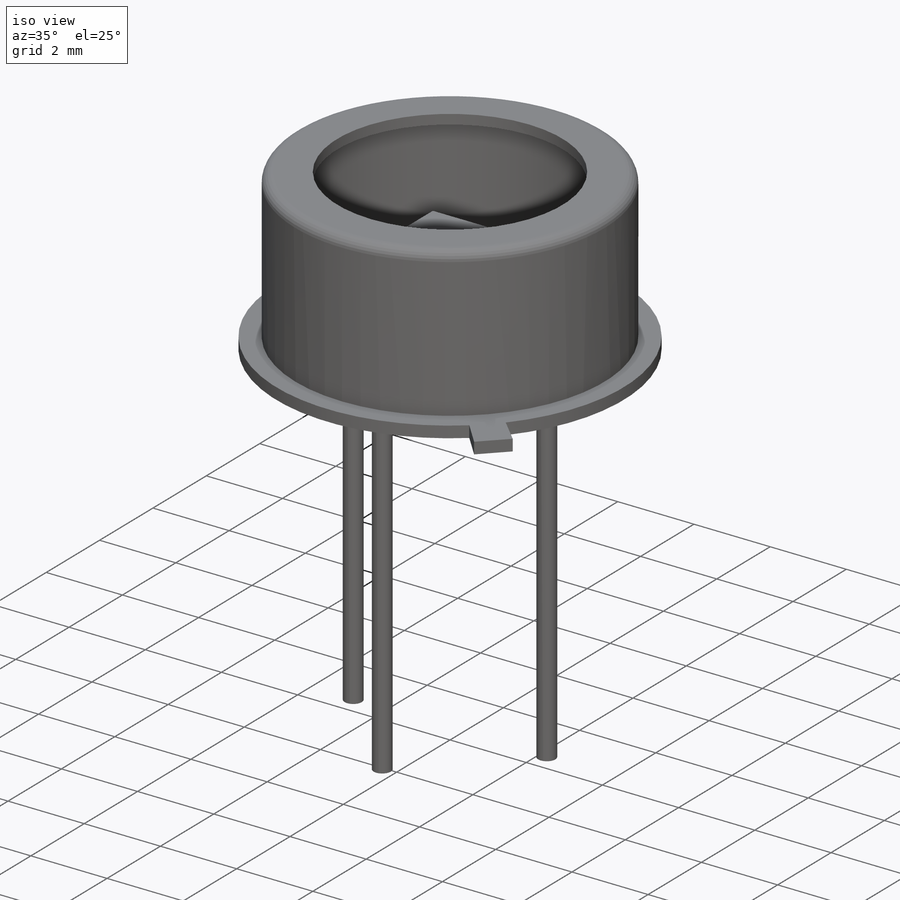
[diagram: iso view]
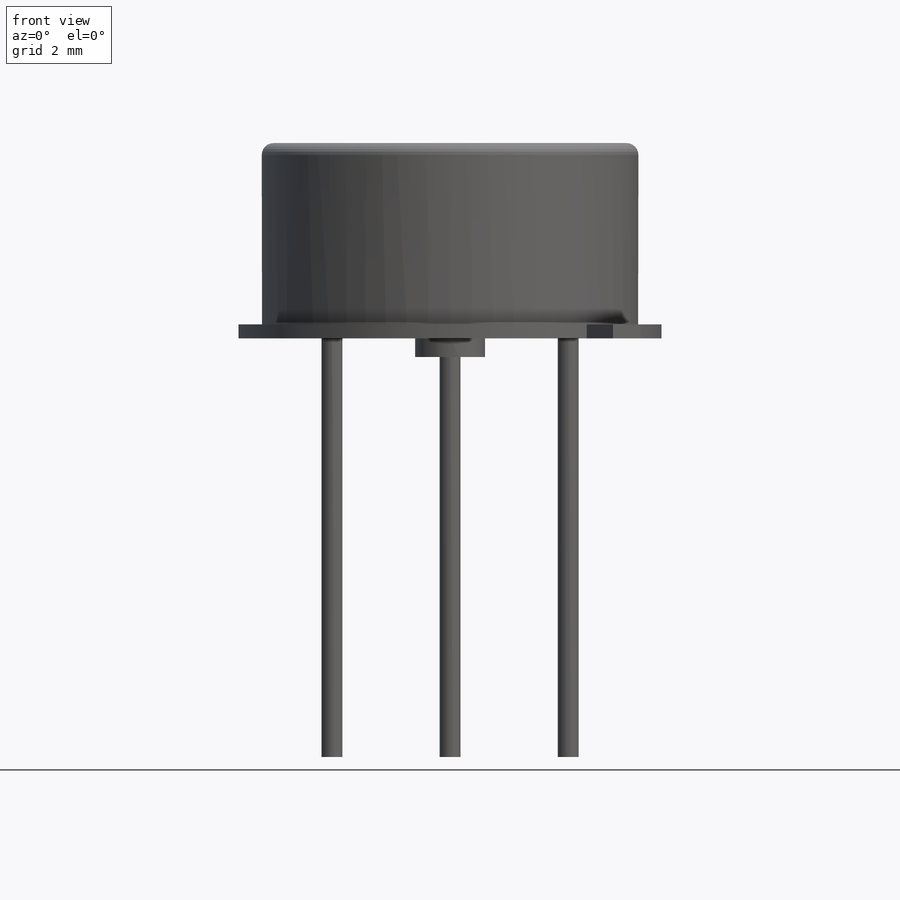
[diagram: front view]
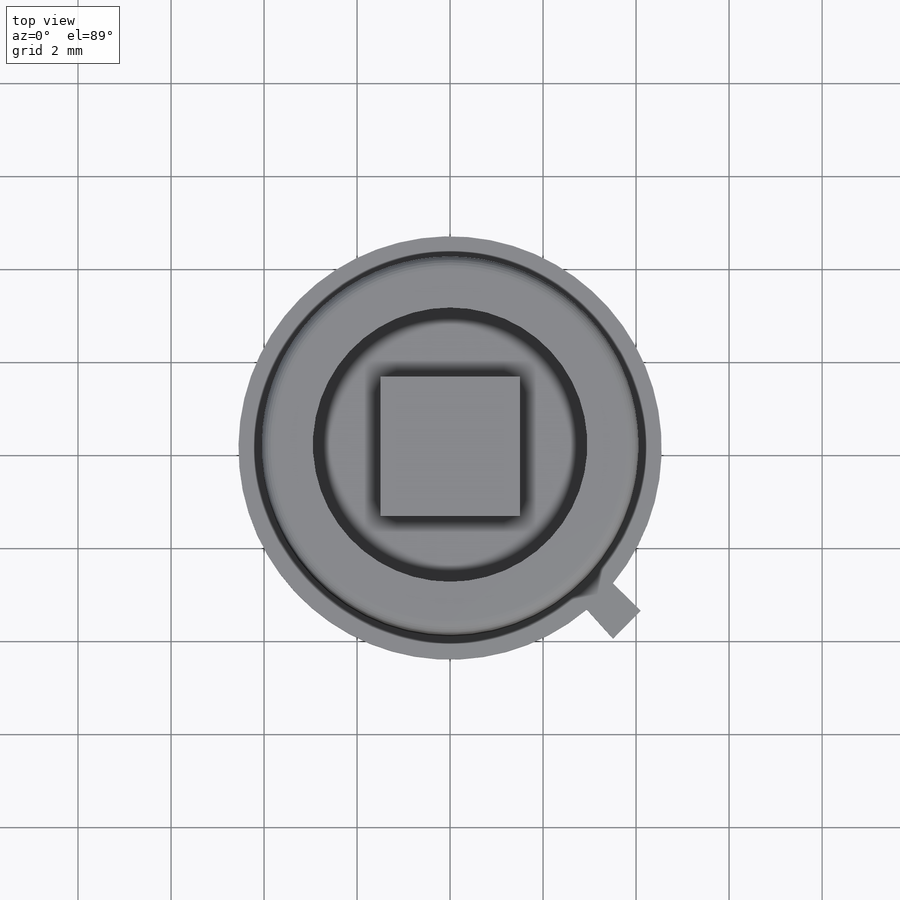
[diagram: top view]
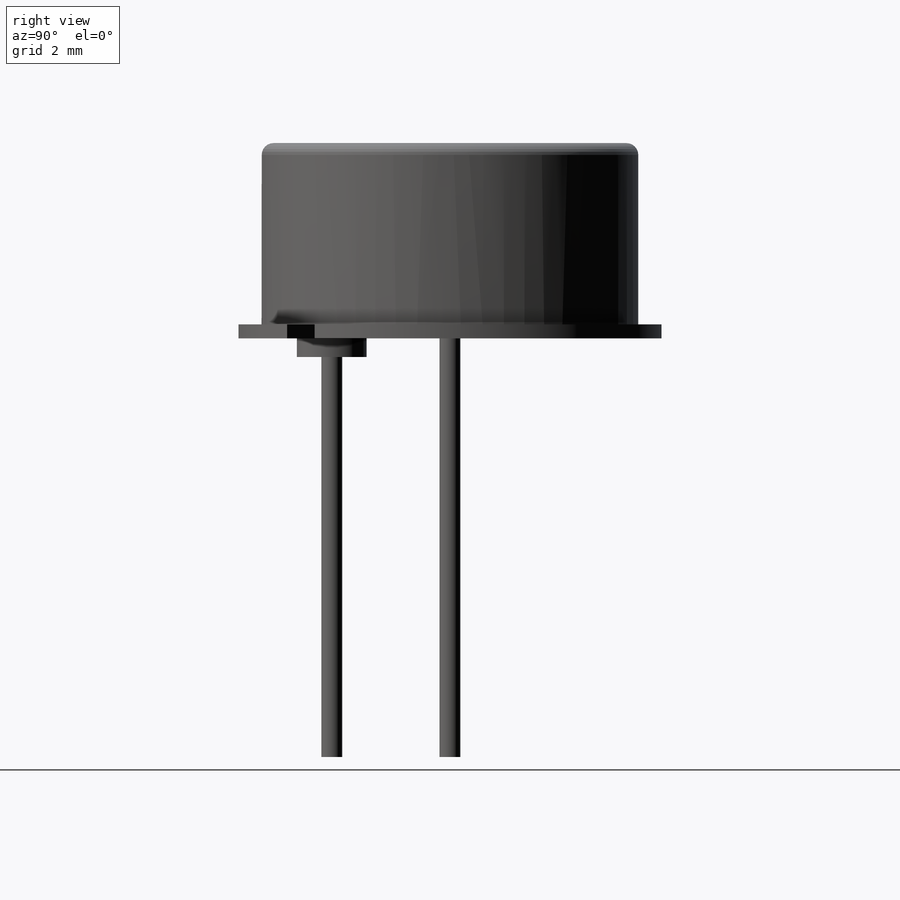
[diagram: right view]
SOLIDWORKS PART (.sldprt)
format: sldprt  version: not decoded by parser v0  size: 270,336 bytes
history: native  units: mm
features: sketch x6, extrude x5, material x1 (+12 scaffold rows collapsed)
feature tree (24):
  scaffold x12  (default folders/planes/origin — collapsed)
  material  "Material <not specified>"
  sketch  "Sketch1"  dims[c1.D7=0.254mm c1.D1=0.3mm c1.D2=8.1mm c1.D3=0.762mm c1.D4=0.508mm c1.D5=10.16mm c2.D4=9.1mm c2.D3=0.508mm c2.D5=~0.268386mm c2.D6=4.2mm c2.D8=5.9mm c2.D1=360.0deg c3.D3=0.254mm c3.D4=1.0mm c3.D7=0.0mm]
  sketch  "Sketch2"  dims[D1=0.0mm]
  extrude  "Boss-Extrude1"  [1 undecoded]
  sketch  "Sketch3"  dims[D1=3.0mm]
  extrude  "Boss-Extrude2"  Depth=0.508mm
  sketch  "Sketch4"  dims[c1.D1=10.16mm c1.D2=0.8mm c1.D3=~1.033531mm c2.D1=0.8mm c2.D3=~3.068051mm c3.D3=45.0deg c3.D4=0.8mm c3.D1=0.4mm c3.D2=0.4mm c4.D1=0.8mm c4.D2=0.8mm c4.D4=~2.938866mm c4.D5=~3.503256mm c4.D6=~3.503436mm c4.D7=~4.069032mm c5.D4=~2.937751mm c5.D5=~3.50232mm c6.D4=~3.50232mm c6.D1=~2.938866mm c6.D2=~3.503436mm c7.D4=~4.069032mm c7.D1=~2.938866mm c7.D2=~3.503436mm]
  extrude  "Boss-Extrude3"  [1 undecoded]
  sketch  "Sketch5"  dims[c1.D1=5.08mm c1.D2=0.45mm c1.D3=0.45mm c1.D4=0.45mm c1.D5=0.45mm c1.D6=0.45mm c2.D3=2.54mm c3.D3=45.0deg c4.D3=5.08mm c4.D6=3.048mm c5.D3=5.08mm]
  extrude  "Boss-Extrude4"  Depth=9mm
  sketch  "Sketch7"  dims[D1=1.5mm]
  extrude  "Boss-Extrude5"  Depth=0.4mm
decode coverage: 9 of 11 modeling features carry decoded parameters
note: ~ marks probable driven/reference dimensions
note: 2 parameter values undecoded
note: suppression state not decoded; provenance and decode notes live in map.json
